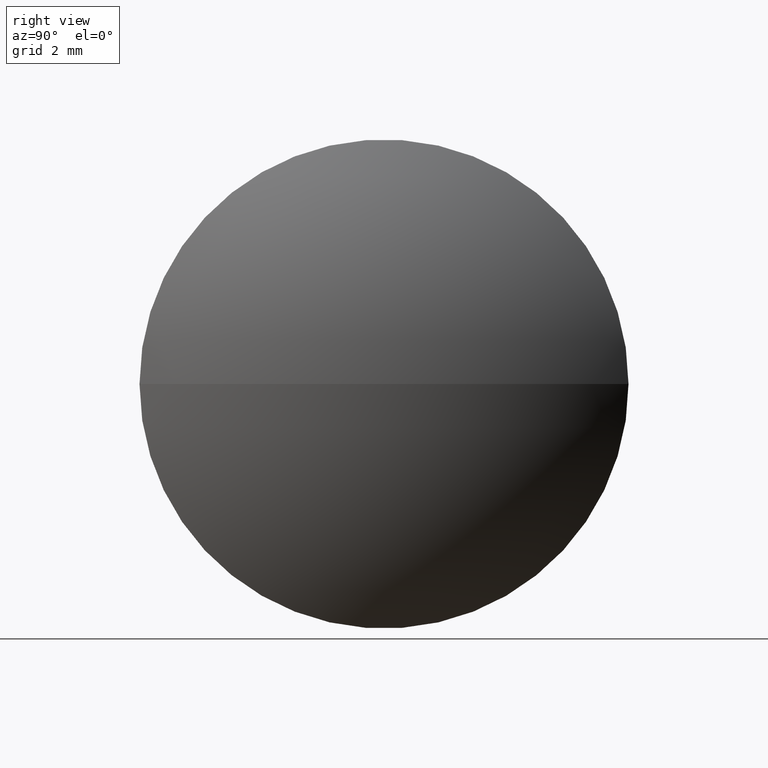
[diagram: clean part render]
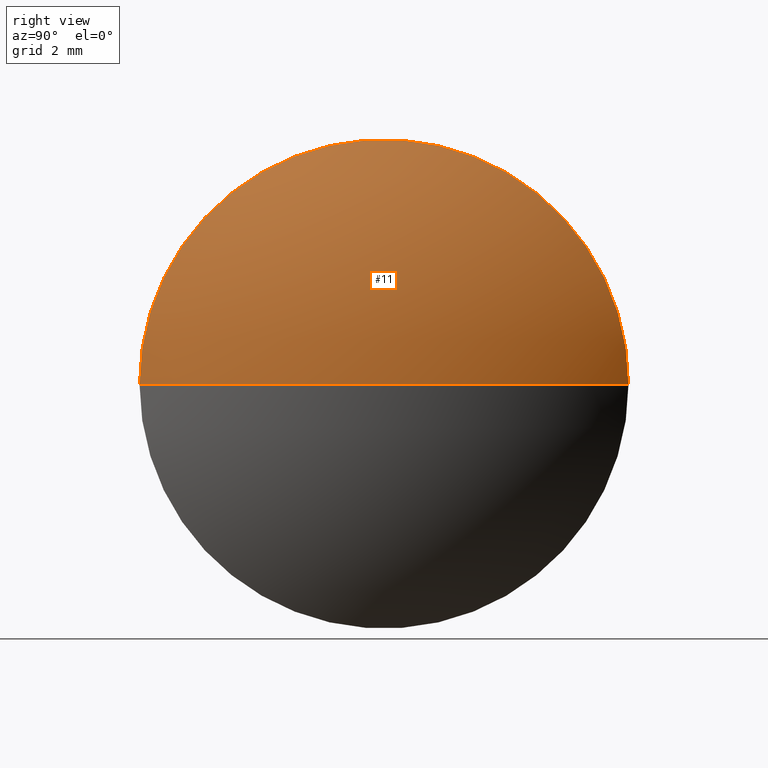
[diagram: same view with one face highlighted and labeled with its STEP entity id]
A machine part, right view. The second image highlights one B-rep face of the part: STEP entity #11.
In plain terms, the highlighted spherical surface has radius 10.5319 mm.
Its self-contained STEP definition (entity closure, byte-faithful):
#11 = ADVANCED_FACE ( 'NONE', ( #40 ), #77, .T. ) ;
#17 = CIRCLE ( 'NONE', #21, 10.53191963756296800 ) ;
#21 = AXIS2_PLACEMENT_3D ( 'NONE', #93, #116, #70 ) ;
#31 = ORIENTED_EDGE ( 'NONE', *, *, #162, .F. ) ;
#40 = FACE_OUTER_BOUND ( 'NONE', #115, .T. ) ;
#44 = DIRECTION ( 'NONE',  ( 0.0000000000000000000, 0.0000000000000000000, -1.000000000000000000 ) ) ;
#50 = CARTESIAN_POINT ( 'NONE',  ( 46.35873974447412800, 24.30805651159239000, 0.0000000000000000000 ) ) ;
#59 = AXIS2_PLACEMENT_3D ( 'NONE', #68, #44, #283 ) ;
#68 = CARTESIAN_POINT ( 'NONE',  ( 35.82682010691116400, 24.30805651159239700, 0.0000000000000000000 ) ) ;
#69 = CIRCLE ( 'NONE', #213, 10.53191963756296400 ) ;
#70 = DIRECTION ( 'NONE',  ( 1.000000000000000000, 0.0000000000000000000, 0.0000000000000000000 ) ) ;
#71 = DIRECTION ( 'NONE',  ( -1.000000000000000000, 7.030499645320012300E-016, -0.0000000000000000000 ) ) ;
#77 = SPHERICAL_SURFACE ( 'NONE', #59, 10.53191963756296600 ) ;
#93 = CARTESIAN_POINT ( 'NONE',  ( 35.82682010691116400, 24.30805651159239700, 0.0000000000000000000 ) ) ;
#112 = EDGE_CURVE ( 'NONE', #133, #267, #17, .T. ) ;
#115 = EDGE_LOOP ( 'NONE', ( #291, #270, #31 ) ) ;
#116 = DIRECTION ( 'NONE',  ( 0.0000000000000000000, 0.0000000000000000000, 1.000000000000000000 ) ) ;
#119 = CARTESIAN_POINT ( 'NONE',  ( 44.22913117304555200, 30.65805651159239200, 0.0000000000000000000 ) ) ;
#133 = VERTEX_POINT ( 'NONE', #50 ) ;
#139 = CARTESIAN_POINT ( 'NONE',  ( 44.22913117304554500, 24.30805651159239000, 0.0000000000000000000 ) ) ;
#162 = EDGE_CURVE ( 'NONE', #293, #267, #257, .T. ) ;
#177 = AXIS2_PLACEMENT_3D ( 'NONE', #139, #71, #240 ) ;
#187 = DIRECTION ( 'NONE',  ( 0.0000000000000000000, 1.000000000000000000, 1.224646799147353500E-016 ) ) ;
#198 = EDGE_CURVE ( 'NONE', #133, #293, #69, .T. ) ;
#213 = AXIS2_PLACEMENT_3D ( 'NONE', #286, #216, #187 ) ;
#216 = DIRECTION ( 'NONE',  ( 8.609878887047754700E-032, 1.224646799147353200E-016, -1.000000000000000000 ) ) ;
#240 = DIRECTION ( 'NONE',  ( -1.092739197465705700E-015, -1.000000000000000000, 0.0000000000000000000 ) ) ;
#257 = CIRCLE ( 'NONE', #177, 6.349999999999997900 ) ;
#263 = CARTESIAN_POINT ( 'NONE',  ( 44.22913117304553800, 17.95805651159238900, -7.776507174585695100E-016 ) ) ;
#267 = VERTEX_POINT ( 'NONE', #119 ) ;
#270 = ORIENTED_EDGE ( 'NONE', *, *, #112, .T. ) ;
#283 = DIRECTION ( 'NONE',  ( 6.588441749174659300E-016, 1.000000000000000000, 0.0000000000000000000 ) ) ;
#286 = CARTESIAN_POINT ( 'NONE',  ( 35.82682010691116400, 24.30805651159239700, 0.0000000000000000000 ) ) ;
#291 = ORIENTED_EDGE ( 'NONE', *, *, #198, .F. ) ;
#293 = VERTEX_POINT ( 'NONE', #263 ) ;